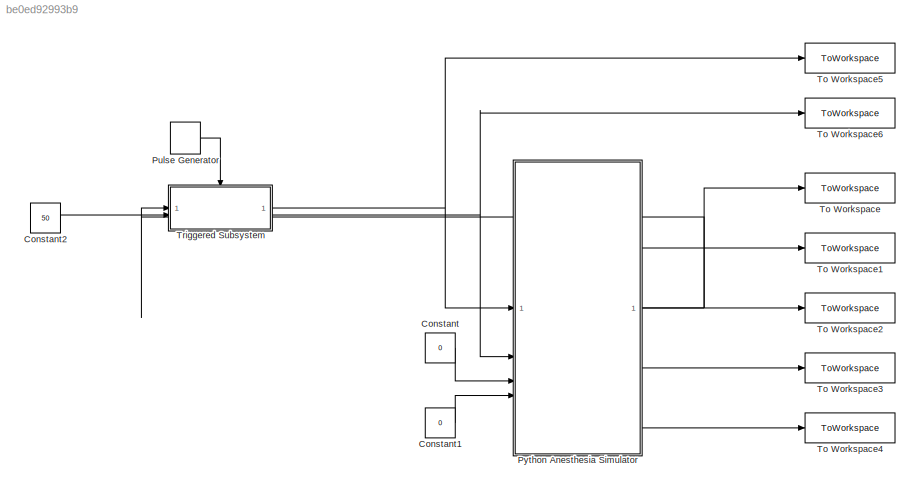
MODEL slx_be0ed92993b9
KIND model
CONFIG AbsTol = auto
CONFIG EnableMultiTasking = off
CONFIG FixedStep = auto
CONFIG MaxStep = auto
CONFIG MinStep = auto
CONFIG RelTol = 1e-3
CONFIG SampleTimeConstraint = Unconstrained
CONFIG SolverName = VariableStepAuto
CONFIG StartTime = 0.0
CONFIG StopTime = simulation_time
BLOCK [Constant] Constant
  Value = 0
BLOCK [Constant] Constant1
  Value = 0
BLOCK [Constant] Constant2
  Value = 50
BLOCK [DiscretePulseGenerator] Pulse Generator
  Period = Ts
  PulseType = Time based
  PulseWidth = 5
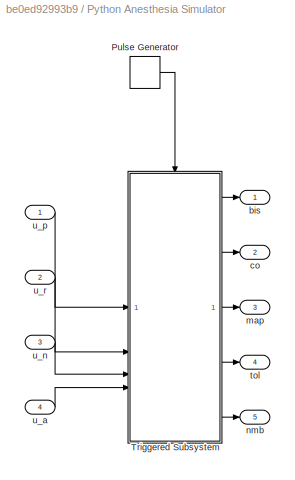
BLOCK [SubSystem] Python Anesthesia Simulator
BLOCK [DiscretePulseGenerator] Python Anesthesia Simulator/Pulse Generator
  Period = sampling_time
  PulseType = Time based
  PulseWidth = 5
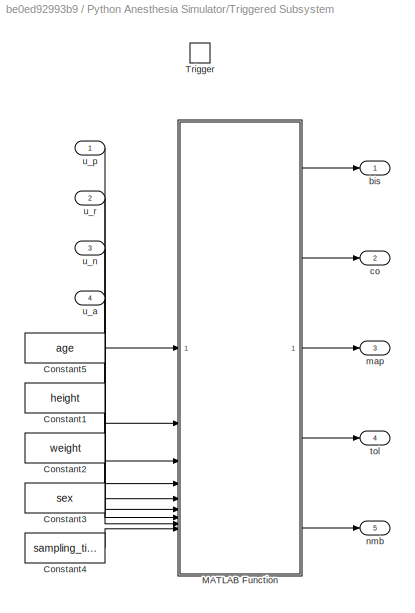
BLOCK [SubSystem] Python Anesthesia Simulator/Triggered Subsystem
  TreatAsAtomicUnit = on
BLOCK [Constant] Python Anesthesia Simulator/Triggered Subsystem/Constant1
  Value = height
BLOCK [Constant] Python Anesthesia Simulator/Triggered Subsystem/Constant2
  Value = weight
BLOCK [Constant] Python Anesthesia Simulator/Triggered Subsystem/Constant3
  Value = sex
BLOCK [Constant] Python Anesthesia Simulator/Triggered Subsystem/Constant4
  Value = sampling_time
BLOCK [Constant] Python Anesthesia Simulator/Triggered Subsystem/Constant5
  Value = age
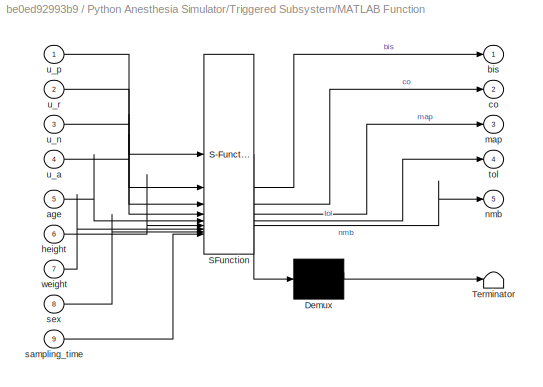
BLOCK [SubSystem] Python Anesthesia Simulator/Triggered Subsystem/MATLAB Function
  ErrorFcn = Stateflow.Translate.translate
  PermitHierarchicalResolution = ExplicitOnly
  SFBlockType = MATLAB Function
  TreatAsAtomicUnit = on
BLOCK [Demux] Python Anesthesia Simulator/Triggered Subsystem/MATLAB Function/ Demux 
  Outputs = 1
BLOCK [S-Function] Python Anesthesia Simulator/Triggered Subsystem/MATLAB Function/ SFunction 
  EnableBusSupport = on
  FunctionName = sf_sfun
  PortCounts = [9 6]
  SFcnIsStateOwnerBlock = off
  SFunctionDeploymentMode = off
  Tag = Stateflow S-Function 2
BLOCK [Terminator] Python Anesthesia Simulator/Triggered Subsystem/MATLAB Function/ Terminator 
BLOCK [Inport] Python Anesthesia Simulator/Triggered Subsystem/MATLAB Function/age
  Port = 5
BLOCK [Outport] Python Anesthesia Simulator/Triggered Subsystem/MATLAB Function/bis
BLOCK [Outport] Python Anesthesia Simulator/Triggered Subsystem/MATLAB Function/co
  Port = 2
BLOCK [Inport] Python Anesthesia Simulator/Triggered Subsystem/MATLAB Function/height
  Port = 6
BLOCK [Outport] Python Anesthesia Simulator/Triggered Subsystem/MATLAB Function/map
  Port = 3
BLOCK [Outport] Python Anesthesia Simulator/Triggered Subsystem/MATLAB Function/nmb
  Port = 5
BLOCK [Inport] Python Anesthesia Simulator/Triggered Subsystem/MATLAB Function/sampling_time
  Port = 9
BLOCK [Inport] Python Anesthesia Simulator/Triggered Subsystem/MATLAB Function/sex
  Port = 8
BLOCK [Outport] Python Anesthesia Simulator/Triggered Subsystem/MATLAB Function/tol
  Port = 4
BLOCK [Inport] Python Anesthesia Simulator/Triggered Subsystem/MATLAB Function/u_a
  Port = 4
BLOCK [Inport] Python Anesthesia Simulator/Triggered Subsystem/MATLAB Function/u_n
  Port = 3
BLOCK [Inport] Python Anesthesia Simulator/Triggered Subsystem/MATLAB Function/u_p
BLOCK [Inport] Python Anesthesia Simulator/Triggered Subsystem/MATLAB Function/u_r
  Port = 2
BLOCK [Inport] Python Anesthesia Simulator/Triggered Subsystem/MATLAB Function/weight
  Port = 7
BLOCK [TriggerPort] Python Anesthesia Simulator/Triggered Subsystem/Trigger
  StatesWhenEnabling = held
  VariantControl = (inherit)
BLOCK [Outport] Python Anesthesia Simulator/Triggered Subsystem/bis
BLOCK [Outport] Python Anesthesia Simulator/Triggered Subsystem/co
  Port = 2
BLOCK [Outport] Python Anesthesia Simulator/Triggered Subsystem/map
  Port = 3
BLOCK [Outport] Python Anesthesia Simulator/Triggered Subsystem/nmb
  Port = 5
BLOCK [Outport] Python Anesthesia Simulator/Triggered Subsystem/tol
  Port = 4
BLOCK [Inport] Python Anesthesia Simulator/Triggered Subsystem/u_a
  Port = 4
BLOCK [Inport] Python Anesthesia Simulator/Triggered Subsystem/u_n
  Port = 3
BLOCK [Inport] Python Anesthesia Simulator/Triggered Subsystem/u_p
BLOCK [Inport] Python Anesthesia Simulator/Triggered Subsystem/u_r
  Port = 2
BLOCK [Outport] Python Anesthesia Simulator/bis
BLOCK [Outport] Python Anesthesia Simulator/co
  Port = 2
BLOCK [Outport] Python Anesthesia Simulator/map
  Port = 3
BLOCK [Outport] Python Anesthesia Simulator/nmb
  Port = 5
BLOCK [Outport] Python Anesthesia Simulator/tol
  Port = 4
BLOCK [Inport] Python Anesthesia Simulator/u_a
  Port = 4
BLOCK [Inport] Python Anesthesia Simulator/u_n
  Port = 3
BLOCK [Inport] Python Anesthesia Simulator/u_p
BLOCK [Inport] Python Anesthesia Simulator/u_r
  Port = 2
BLOCK [ToWorkspace] To Workspace
  FixptAsFi = on
  MaxDataPoints = inf
  SampleTime = -1
  SaveFormat = Timeseries
  VariableName = bis
BLOCK [ToWorkspace] To Workspace1
  FixptAsFi = on
  MaxDataPoints = inf
  SampleTime = -1
  SaveFormat = Timeseries
  VariableName = co
BLOCK [ToWorkspace] To Workspace2
  FixptAsFi = on
  MaxDataPoints = inf
  SampleTime = -1
  SaveFormat = Timeseries
  VariableName = map
BLOCK [ToWorkspace] To Workspace3
  FixptAsFi = on
  MaxDataPoints = inf
  SampleTime = -1
  SaveFormat = Timeseries
  VariableName = tol
BLOCK [ToWorkspace] To Workspace4
  FixptAsFi = on
  MaxDataPoints = inf
  SampleTime = -1
  SaveFormat = Timeseries
  VariableName = nmb
BLOCK [ToWorkspace] To Workspace5
  FixptAsFi = on
  MaxDataPoints = inf
  SampleTime = -1
  SaveFormat = Timeseries
  VariableName = u_prop
BLOCK [ToWorkspace] To Workspace6
  FixptAsFi = on
  MaxDataPoints = inf
  SampleTime = -1
  SaveFormat = Timeseries
  VariableName = u_remi
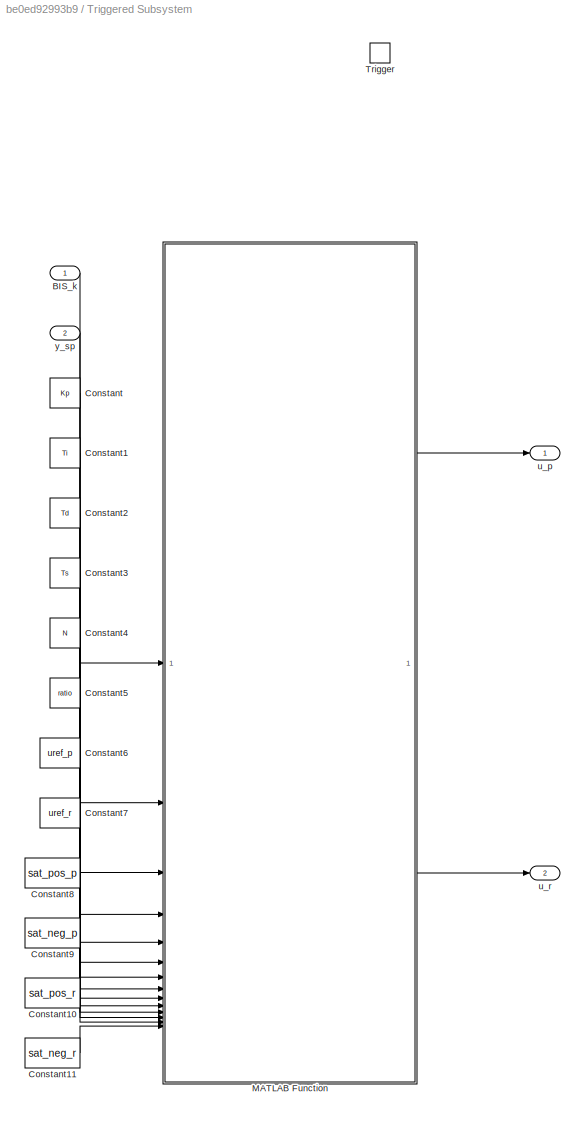
BLOCK [SubSystem] Triggered Subsystem
  TreatAsAtomicUnit = on
BLOCK [Inport] Triggered Subsystem/BIS_k
  LatchByDelayingOutsideSignal = on
BLOCK [Constant] Triggered Subsystem/Constant
  Value = Kp
BLOCK [Constant] Triggered Subsystem/Constant1
  Value = Ti
BLOCK [Constant] Triggered Subsystem/Constant10
  Value = sat_pos_r
BLOCK [Constant] Triggered Subsystem/Constant11
  Value = sat_neg_r
BLOCK [Constant] Triggered Subsystem/Constant2
  Value = Td
BLOCK [Constant] Triggered Subsystem/Constant3
  Value = Ts
BLOCK [Constant] Triggered Subsystem/Constant4
  Value = N
BLOCK [Constant] Triggered Subsystem/Constant5
  Value = ratio
BLOCK [Constant] Triggered Subsystem/Constant6
  Value = uref_p
BLOCK [Constant] Triggered Subsystem/Constant7
  Value = uref_r
BLOCK [Constant] Triggered Subsystem/Constant8
  Value = sat_pos_p
BLOCK [Constant] Triggered Subsystem/Constant9
  Value = sat_neg_p
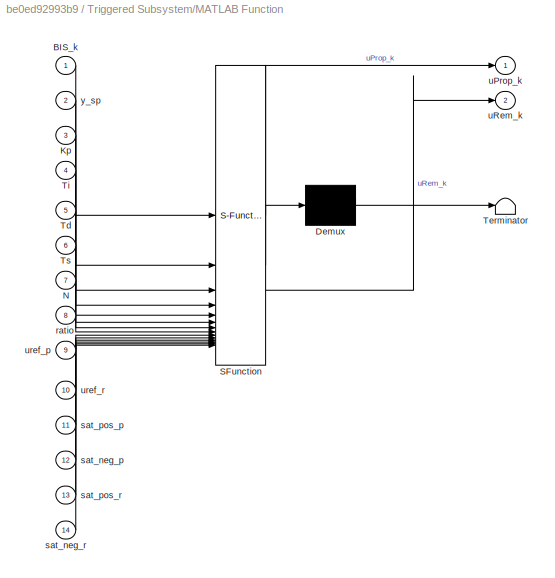
BLOCK [SubSystem] Triggered Subsystem/MATLAB Function
  ErrorFcn = Stateflow.Translate.translate
  PermitHierarchicalResolution = ExplicitOnly
  SFBlockType = MATLAB Function
  TreatAsAtomicUnit = on
BLOCK [Demux] Triggered Subsystem/MATLAB Function/ Demux 
  Outputs = 1
BLOCK [S-Function] Triggered Subsystem/MATLAB Function/ SFunction 
  EnableBusSupport = on
  FunctionName = sf_sfun
  PortCounts = [14 3]
  SFcnIsStateOwnerBlock = off
  SFunctionDeploymentMode = off
  Tag = Stateflow S-Function 1
BLOCK [Terminator] Triggered Subsystem/MATLAB Function/ Terminator 
BLOCK [Inport] Triggered Subsystem/MATLAB Function/BIS_k
BLOCK [Inport] Triggered Subsystem/MATLAB Function/Kp
  Port = 3
BLOCK [Inport] Triggered Subsystem/MATLAB Function/N
  Port = 7
BLOCK [Inport] Triggered Subsystem/MATLAB Function/Td
  Port = 5
BLOCK [Inport] Triggered Subsystem/MATLAB Function/Ti
  Port = 4
BLOCK [Inport] Triggered Subsystem/MATLAB Function/Ts
  Port = 6
BLOCK [Inport] Triggered Subsystem/MATLAB Function/ratio
  Port = 8
BLOCK [Inport] Triggered Subsystem/MATLAB Function/sat_neg_p
  Port = 12
BLOCK [Inport] Triggered Subsystem/MATLAB Function/sat_neg_r
  Port = 14
BLOCK [Inport] Triggered Subsystem/MATLAB Function/sat_pos_p
  Port = 11
BLOCK [Inport] Triggered Subsystem/MATLAB Function/sat_pos_r
  Port = 13
BLOCK [Outport] Triggered Subsystem/MATLAB Function/uProp_k
BLOCK [Outport] Triggered Subsystem/MATLAB Function/uRem_k
  Port = 2
BLOCK [Inport] Triggered Subsystem/MATLAB Function/uref_p
  Port = 9
BLOCK [Inport] Triggered Subsystem/MATLAB Function/uref_r
  Port = 10
BLOCK [Inport] Triggered Subsystem/MATLAB Function/y_sp
  Port = 2
BLOCK [TriggerPort] Triggered Subsystem/Trigger
  StatesWhenEnabling = held
  VariantControl = (inherit)
BLOCK [Outport] Triggered Subsystem/u_p
BLOCK [Outport] Triggered Subsystem/u_r
  Port = 2
BLOCK [Inport] Triggered Subsystem/y_sp
  Port = 2
LINE Constant1:1 -> Python Anesthesia Simulator:4
LINE Constant2:1 -> Triggered Subsystem:2
LINE Constant:1 -> Python Anesthesia Simulator:3
LINE Pulse Generator:1 -> Triggered Subsystem:trigger
LINE Python Anesthesia Simulator/Pulse Generator:1 -> Python Anesthesia Simulator/Triggered Subsystem:trigger
LINE Python Anesthesia Simulator/Triggered Subsystem/Constant1:1 -> Python Anesthesia Simulator/Triggered Subsystem/MATLAB Function:6
LINE Python Anesthesia Simulator/Triggered Subsystem/Constant2:1 -> Python Anesthesia Simulator/Triggered Subsystem/MATLAB Function:7
LINE Python Anesthesia Simulator/Triggered Subsystem/Constant3:1 -> Python Anesthesia Simulator/Triggered Subsystem/MATLAB Function:8
LINE Python Anesthesia Simulator/Triggered Subsystem/Constant4:1 -> Python Anesthesia Simulator/Triggered Subsystem/MATLAB Function:9
LINE Python Anesthesia Simulator/Triggered Subsystem/Constant5:1 -> Python Anesthesia Simulator/Triggered Subsystem/MATLAB Function:5
LINE Python Anesthesia Simulator/Triggered Subsystem/MATLAB Function:1 -> Python Anesthesia Simulator/Triggered Subsystem/bis:1
LINE Python Anesthesia Simulator/Triggered Subsystem/MATLAB Function:2 -> Python Anesthesia Simulator/Triggered Subsystem/co:1
LINE Python Anesthesia Simulator/Triggered Subsystem/MATLAB Function:3 -> Python Anesthesia Simulator/Triggered Subsystem/map:1
LINE Python Anesthesia Simulator/Triggered Subsystem/MATLAB Function:4 -> Python Anesthesia Simulator/Triggered Subsystem/tol:1
LINE Python Anesthesia Simulator/Triggered Subsystem/MATLAB Function:5 -> Python Anesthesia Simulator/Triggered Subsystem/nmb:1
LINE Python Anesthesia Simulator/Triggered Subsystem/u_a:1 -> Python Anesthesia Simulator/Triggered Subsystem/MATLAB Function:4
LINE Python Anesthesia Simulator/Triggered Subsystem/u_n:1 -> Python Anesthesia Simulator/Triggered Subsystem/MATLAB Function:3
LINE Python Anesthesia Simulator/Triggered Subsystem/u_p:1 -> Python Anesthesia Simulator/Triggered Subsystem/MATLAB Function:1
LINE Python Anesthesia Simulator/Triggered Subsystem/u_r:1 -> Python Anesthesia Simulator/Triggered Subsystem/MATLAB Function:2
LINE Python Anesthesia Simulator/Triggered Subsystem:1 -> Python Anesthesia Simulator/bis:1
LINE Python Anesthesia Simulator/Triggered Subsystem:2 -> Python Anesthesia Simulator/co:1
LINE Python Anesthesia Simulator/Triggered Subsystem:3 -> Python Anesthesia Simulator/map:1
LINE Python Anesthesia Simulator/Triggered Subsystem:4 -> Python Anesthesia Simulator/tol:1
LINE Python Anesthesia Simulator/Triggered Subsystem:5 -> Python Anesthesia Simulator/nmb:1
LINE Python Anesthesia Simulator/u_a:1 -> Python Anesthesia Simulator/Triggered Subsystem:4
LINE Python Anesthesia Simulator/u_n:1 -> Python Anesthesia Simulator/Triggered Subsystem:3
LINE Python Anesthesia Simulator/u_p:1 -> Python Anesthesia Simulator/Triggered Subsystem:1
LINE Python Anesthesia Simulator/u_r:1 -> Python Anesthesia Simulator/Triggered Subsystem:2
NET Python Anesthesia Simulator:1 -> To Workspace:1, Triggered Subsystem:1
LINE Python Anesthesia Simulator:2 -> To Workspace1:1
LINE Python Anesthesia Simulator:3 -> To Workspace2:1
LINE Python Anesthesia Simulator:4 -> To Workspace3:1
LINE Python Anesthesia Simulator:5 -> To Workspace4:1
LINE Triggered Subsystem/BIS_k:1 -> Triggered Subsystem/MATLAB Function:1
LINE Triggered Subsystem/Constant10:1 -> Triggered Subsystem/MATLAB Function:13
LINE Triggered Subsystem/Constant11:1 -> Triggered Subsystem/MATLAB Function:14
LINE Triggered Subsystem/Constant1:1 -> Triggered Subsystem/MATLAB Function:4
LINE Triggered Subsystem/Constant2:1 -> Triggered Subsystem/MATLAB Function:5
LINE Triggered Subsystem/Constant3:1 -> Triggered Subsystem/MATLAB Function:6
LINE Triggered Subsystem/Constant4:1 -> Triggered Subsystem/MATLAB Function:7
LINE Triggered Subsystem/Constant5:1 -> Triggered Subsystem/MATLAB Function:8
LINE Triggered Subsystem/Constant6:1 -> Triggered Subsystem/MATLAB Function:9
LINE Triggered Subsystem/Constant7:1 -> Triggered Subsystem/MATLAB Function:10
LINE Triggered Subsystem/Constant8:1 -> Triggered Subsystem/MATLAB Function:11
LINE Triggered Subsystem/Constant9:1 -> Triggered Subsystem/MATLAB Function:12
LINE Triggered Subsystem/Constant:1 -> Triggered Subsystem/MATLAB Function:3
LINE Triggered Subsystem/MATLAB Function:1 -> Triggered Subsystem/u_p:1
LINE Triggered Subsystem/MATLAB Function:2 -> Triggered Subsystem/u_r:1
LINE Triggered Subsystem/y_sp:1 -> Triggered Subsystem/MATLAB Function:2
NET Triggered Subsystem:1 -> Python Anesthesia Simulator:1, To Workspace5:1
NET Triggered Subsystem:2 -> Python Anesthesia Simulator:2, To Workspace6:1
note: NET lines group one-source signal fan-out (src -> all destinations, sorted); 1:1 wires keep LINE
CHART Triggered
Subsystem/MATLAB Function states=1 transitions=1
  STATE_LABEL 'eML_blk_kernel()'
  STATE_LABEL 'SCRIPT:\nfunction [uProp_k, uRem_k] = pid_ratio(BIS_k, y_sp, Kp, Ti, Td, Ts, N, ratio, uref_p, uref_r, sat_pos_p, sat_neg_p, sat_pos_r, sat_neg_r)\n% PID_RATIO A PID controller for propofol and remifentanil ratio\n% coadministration with saturation and anti-windup\n%\n% Inputs:\n%   BIS_k   - Current BIS value\n%   y_sp    - Setpoint for BIS\n%   parameters:\n%       Kp, Ti, Td, Ts, N              : PID tu...<+1621ch>'
CHART Python Anesthesia Simulator/Triggered
Subsystem/MATLAB Function states=1 transitions=1
  STATE_LABEL 'eML_blk_kernel()'
  STATE_LABEL "SCRIPT:\nfunction [bis, co, map, tol, nmb] = PythonStep(u_p,u_r,u_n,u_a,age,height,weight,sex,sampling_time)\n    coder.extrinsic('callPython')\n    % Default value for codegen\n    bis = 0; \n    co = 0;\n    map = 0;\n    tol = 0;\n    nmb = 0;\n    [bis, co, map, tol, nmb] = callPython(u_p,u_r,u_n,u_a,age,height,weight,sex,sampling_time);\nend\n\n\n"
CHART  states=0 transitions=0
CHART  states=0 transitions=0
